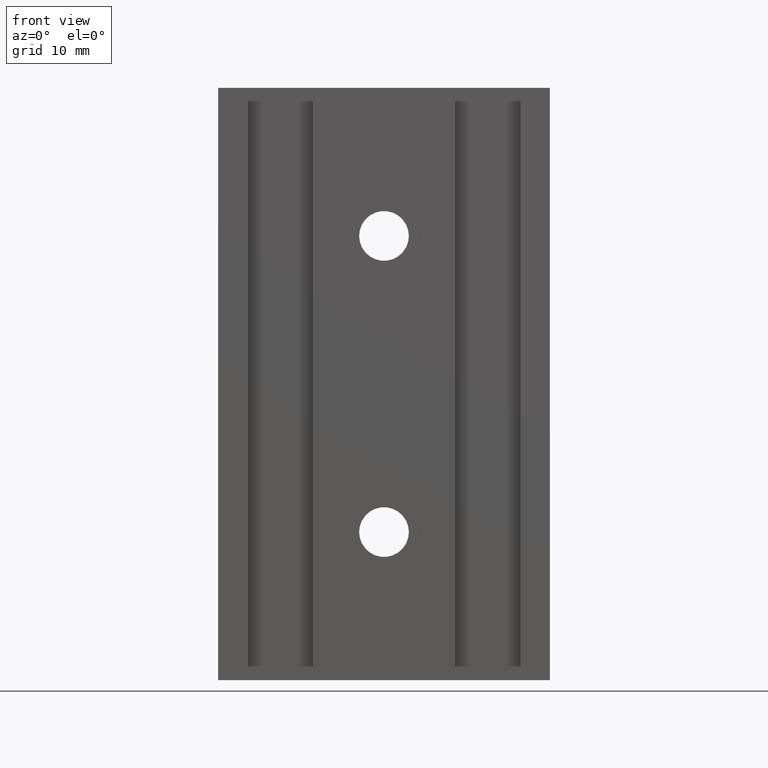
[diagram: clean part render]
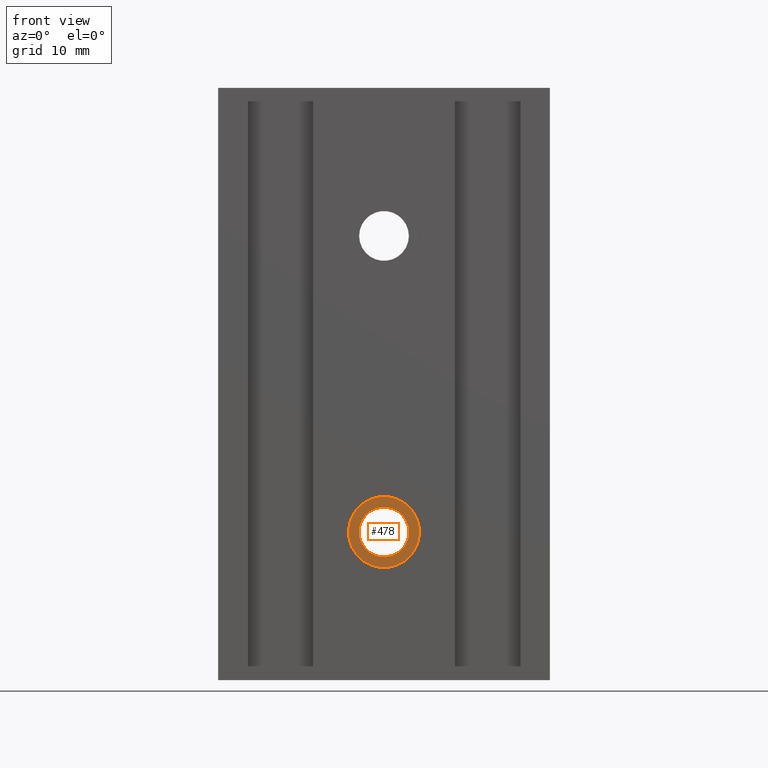
[diagram: same view with one face highlighted and labeled with its STEP entity id]
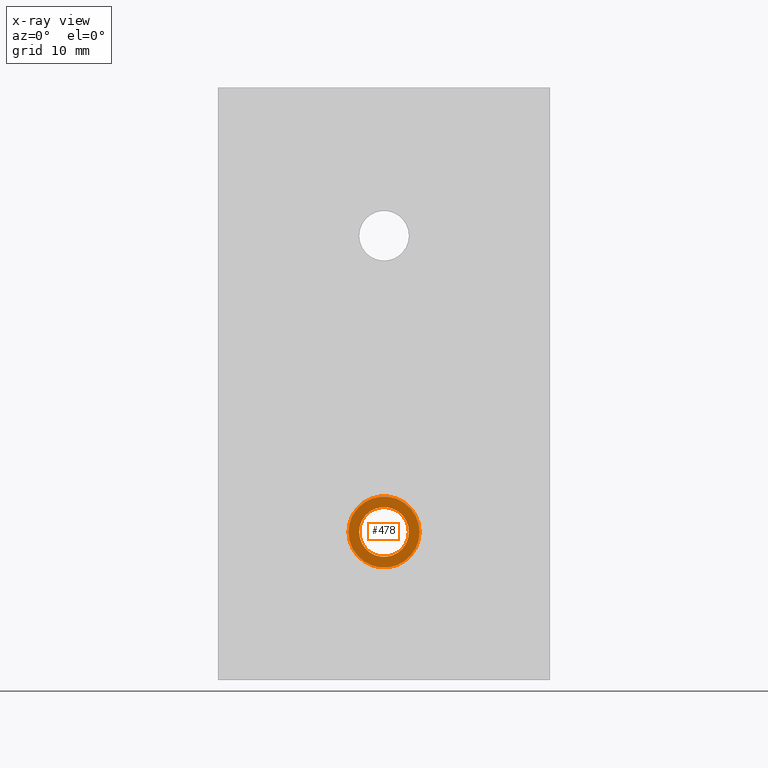
[diagram: x-ray of the same camera — body ghosted, the highlighted face saturated]
A machine part, front view. The second image highlights one B-rep face of the part: STEP entity #478.
The next image is the same camera in x-ray: the body ghosted, the highlighted face saturated — about 0% of this face is hidden behind the body in this view.
In plain terms, the highlighted planar face has unit normal (0, -1, 0).
Its self-contained STEP definition (entity closure, byte-faithful):
#15=FACE_BOUND('',#75,.T.);
#23=PLANE('',#531);
#46=FACE_OUTER_BOUND('',#74,.T.);
#74=EDGE_LOOP('',(#343));
#75=EDGE_LOOP('',(#344));
#218=CIRCLE('',#530,3.);
#219=CIRCLE('',#532,2.1);
#230=VERTEX_POINT('',#708);
#231=VERTEX_POINT('',#712);
#275=EDGE_CURVE('',#230,#230,#218,.T.);
#276=EDGE_CURVE('',#231,#231,#219,.T.);
#343=ORIENTED_EDGE('',*,*,#275,.T.);
#344=ORIENTED_EDGE('',*,*,#276,.F.);
#478=ADVANCED_FACE('',(#46,#15),#23,.T.);
#530=AXIS2_PLACEMENT_3D('',#710,#575,#576);
#531=AXIS2_PLACEMENT_3D('',#711,#577,#578);
#532=AXIS2_PLACEMENT_3D('',#713,#579,#580);
#575=DIRECTION('center_axis',(4.62592926927148E-16,-1.,0.));
#576=DIRECTION('ref_axis',(1.,4.62592926927148E-16,0.));
#577=DIRECTION('center_axis',(4.62592926927148E-16,-1.,0.));
#578=DIRECTION('ref_axis',(1.,4.62592926927148E-16,0.));
#579=DIRECTION('center_axis',(4.62592926927148E-16,-1.,0.));
#580=DIRECTION('ref_axis',(1.,3.70074341541719E-16,0.));
#708=CARTESIAN_POINT('',(-3.00000000000001,2.6,-12.5));
#710=CARTESIAN_POINT('Origin',(-8.97430278238668E-15,2.6,-12.5));
#711=CARTESIAN_POINT('Origin',(-8.97430278238668E-15,2.6,-12.5));
#712=CARTESIAN_POINT('',(-2.10000000000001,2.6,-12.5));
#713=CARTESIAN_POINT('Origin',(-8.73375446038456E-15,2.6,-12.5));